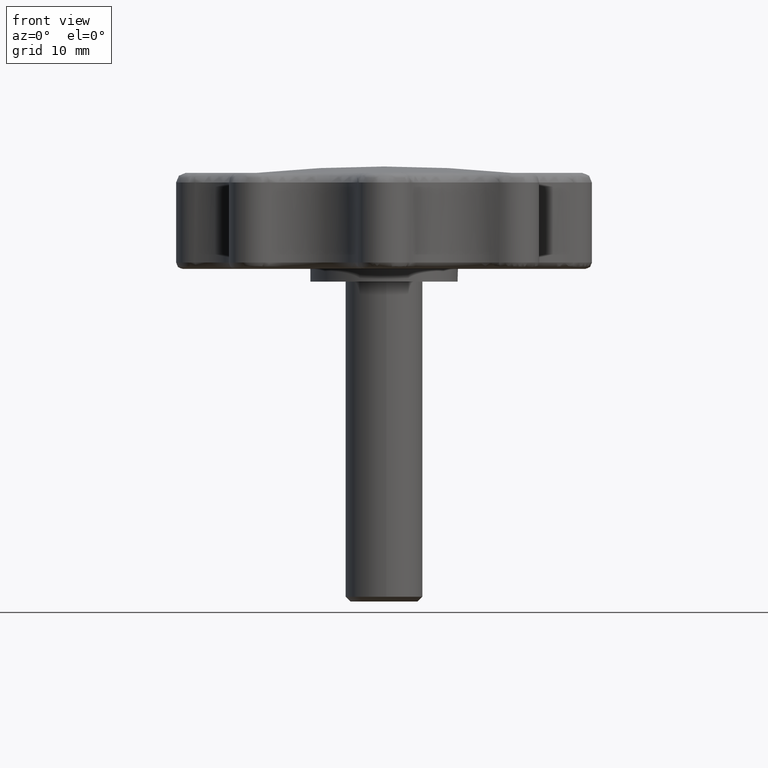
[diagram: clean part render]
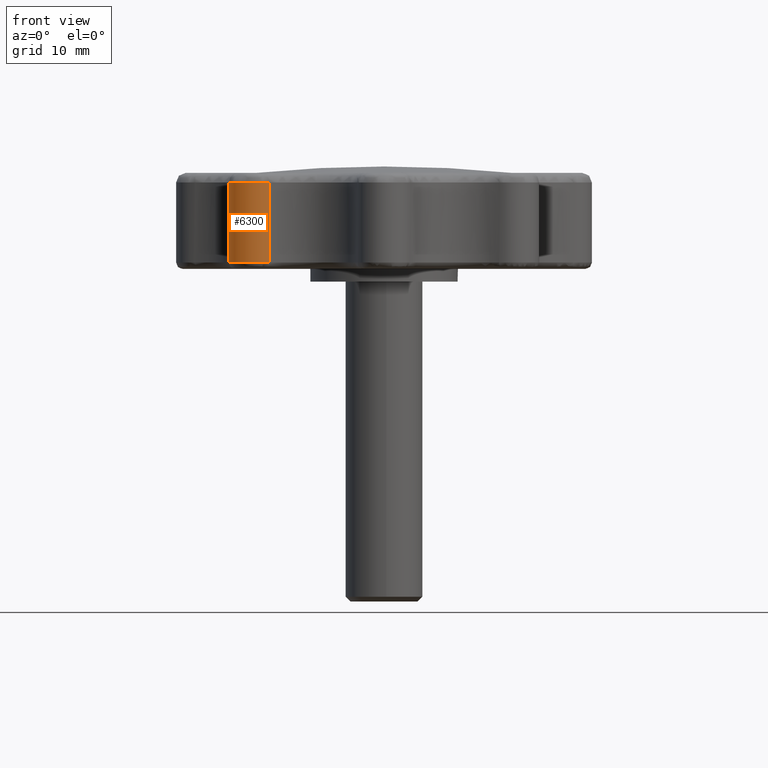
[diagram: same view with one face highlighted and labeled with its STEP entity id]
A machine part, front view. The second image highlights one B-rep face of the part: STEP entity #6300.
In plain terms, the highlighted face is a freeform B-spline surface patch.
Its self-contained STEP definition (entity closure, byte-faithful):
#2459=CARTESIAN_POINT('',(-17.979494027872601,-23.814920383287149,3.0));
#2460=VERTEX_POINT('',#2459);
#2603=CARTESIAN_POINT('',(-23.814921769736699,-17.979488773636799,3.0));
#2604=VERTEX_POINT('',#2603);
#2638=CARTESIAN_POINT('',(-23.814921769736699,-17.979488773636799,3.0));
#2639=CARTESIAN_POINT('',(-25.183919610876728,-20.778021962890293,3.0));
#2640=CARTESIAN_POINT('',(-22.980974158880809,-22.980968875022889,3.0));
#2641=CARTESIAN_POINT('',(-20.778028706884900,-25.183915787155488,3.0));
#2642=CARTESIAN_POINT('',(-17.979494027872601,-23.814920383287149,3.0));
#2650=(BOUNDED_CURVE()B_SPLINE_CURVE(2,(#2638,#2639,#2640,#2641,#2642),.UNSPECIFIED.,.F.,.U.)B_SPLINE_CURVE_WITH_KNOTS((3,2,3),(0.0,0.500000000000000,1.0),.UNSPECIFIED.)CURVE()GEOMETRIC_REPRESENTATION_ITEM()RATIONAL_B_SPLINE_CURVE((1.0,0.813775256079979,1.0,0.813775256079979,1.0))REPRESENTATION_ITEM(''));
#2651=EDGE_CURVE('',#2604,#2460,#2650,.T.);
#4291=CARTESIAN_POINT('',(-23.814921769736699,-17.979488773636799,15.500000000000000));
#4292=VERTEX_POINT('',#4291);
#4439=CARTESIAN_POINT('',(-17.979494027872601,-23.814920383287149,15.500000000000000));
#4440=VERTEX_POINT('',#4439);
#4472=CARTESIAN_POINT('',(-17.979494027872601,-23.814920383287149,15.500000000000000));
#4473=CARTESIAN_POINT('',(-20.778028706884907,-25.183915787155488,15.499999999999996));
#4474=CARTESIAN_POINT('',(-22.980974158880819,-22.980968875022889,15.500000000000000));
#4475=CARTESIAN_POINT('',(-25.183919610876732,-20.778021962890296,15.499999999999996));
#4476=CARTESIAN_POINT('',(-23.814921769736699,-17.979488773636799,15.500000000000000));
#4484=(BOUNDED_CURVE()B_SPLINE_CURVE(2,(#4472,#4473,#4474,#4475,#4476),.UNSPECIFIED.,.F.,.U.)B_SPLINE_CURVE_WITH_KNOTS((3,2,3),(0.0,0.500000000000000,1.0),.UNSPECIFIED.)CURVE()GEOMETRIC_REPRESENTATION_ITEM()RATIONAL_B_SPLINE_CURVE((1.0,0.813775256079980,1.0,0.813775256079980,1.0))REPRESENTATION_ITEM(''));
#4485=EDGE_CURVE('',#4440,#4292,#4484,.T.);
#5889=CARTESIAN_POINT('',(-23.814921769736699,-17.979488773636799,15.500000000000000));
#5890=CARTESIAN_POINT('',(-23.814921769736699,-17.979488773636799,3.0));
#5891=QUASI_UNIFORM_CURVE('',1,(#5889,#5890),.UNSPECIFIED.,.F.,.U.);
#5892=EDGE_CURVE('',#4292,#2604,#5891,.T.);
#6086=CARTESIAN_POINT('',(-17.979494027872601,-23.814920383287149,15.500000000000000));
#6087=CARTESIAN_POINT('',(-17.979494027872601,-23.814920383287149,3.0));
#6088=QUASI_UNIFORM_CURVE('',1,(#6086,#6087),.UNSPECIFIED.,.F.,.U.);
#6089=EDGE_CURVE('',#4440,#2460,#6088,.T.);
#6276=CARTESIAN_POINT('',(-23.798043210598770,-17.945367227226139,15.812500000000000));
#6277=CARTESIAN_POINT('',(-23.798043210598770,-17.945367227226139,2.679687500000000));
#6278=CARTESIAN_POINT('',(-25.241715239412599,-20.832447610862047,15.812499999999996));
#6279=CARTESIAN_POINT('',(-25.241715239412599,-20.832447610862047,2.679687500000000));
#6280=CARTESIAN_POINT('',(-22.902875389818821,-23.057138651502729,15.812500000000000));
#6281=CARTESIAN_POINT('',(-22.902875389818821,-23.057138651502729,2.679687500000000));
#6282=CARTESIAN_POINT('',(-20.564035540225046,-25.281829692143404,15.812499999999996));
#6283=CARTESIAN_POINT('',(-20.564035540225046,-25.281829692143404,2.679687500000000));
#6284=CARTESIAN_POINT('',(-17.752742323612811,-23.695622732574510,15.812500000000000));
#6285=CARTESIAN_POINT('',(-17.752742323612811,-23.695622732574510,2.679687500000000));
#6293=(BOUNDED_SURFACE()B_SPLINE_SURFACE(1,2,((#6276,#6278,#6280,#6282,#6284),(#6277,#6279,#6281,#6283,#6285)),.UNSPECIFIED.,.F.,.F.,.U.)B_SPLINE_SURFACE_WITH_KNOTS((2,2),(3,2,3),(0.0,13.132812500000000),(0.0,5.753848953103903,11.507697906207810),.UNSPECIFIED.)GEOMETRIC_REPRESENTATION_ITEM()RATIONAL_B_SPLINE_SURFACE(((1.0,0.803856860617218,1.0,0.803856860617218,1.0),(1.0,0.803856860617218,1.0,0.803856860617218,1.0)))REPRESENTATION_ITEM('')SURFACE());
#6294=ORIENTED_EDGE('',*,*,#5892,.T.);
#6295=ORIENTED_EDGE('',*,*,#2651,.T.);
#6296=ORIENTED_EDGE('',*,*,#6089,.F.);
#6297=ORIENTED_EDGE('',*,*,#4485,.T.);
#6298=EDGE_LOOP('',(#6294,#6295,#6296,#6297));
#6299=FACE_OUTER_BOUND('',#6298,.T.);
#6300=ADVANCED_FACE('',(#6299),#6293,.T.);